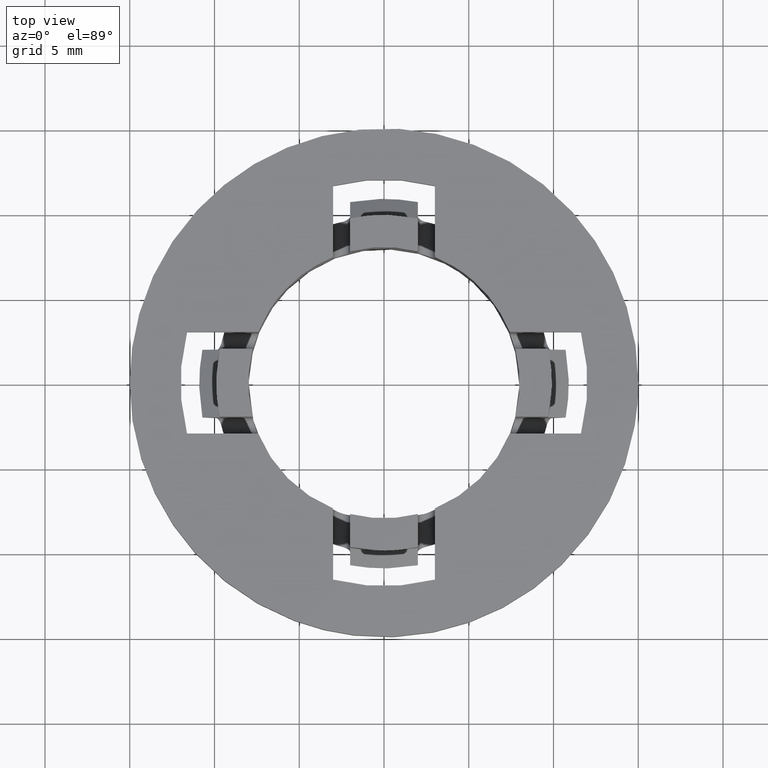
[diagram: clean part render]
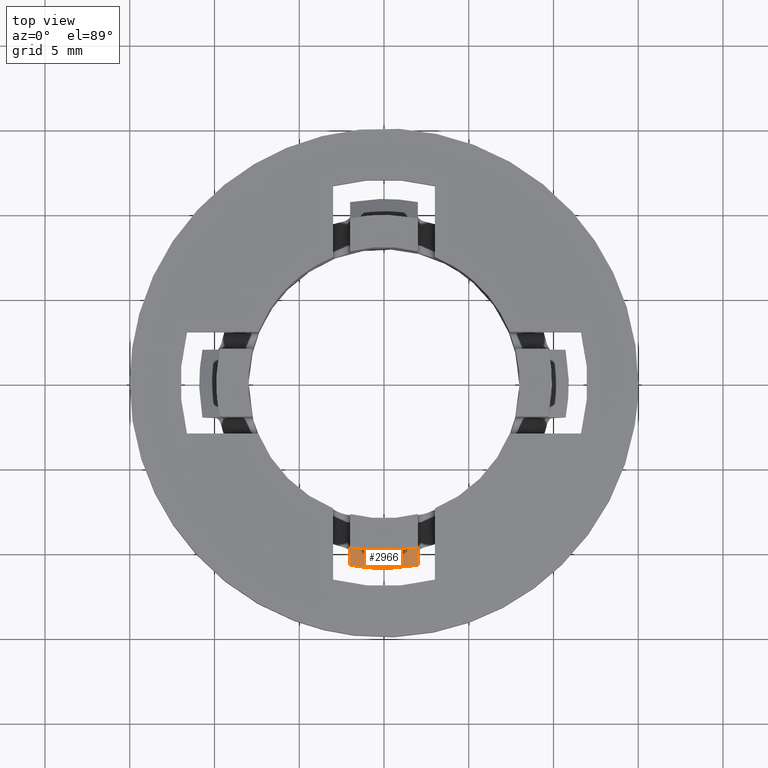
[diagram: same view with one face highlighted and labeled with its STEP entity id]
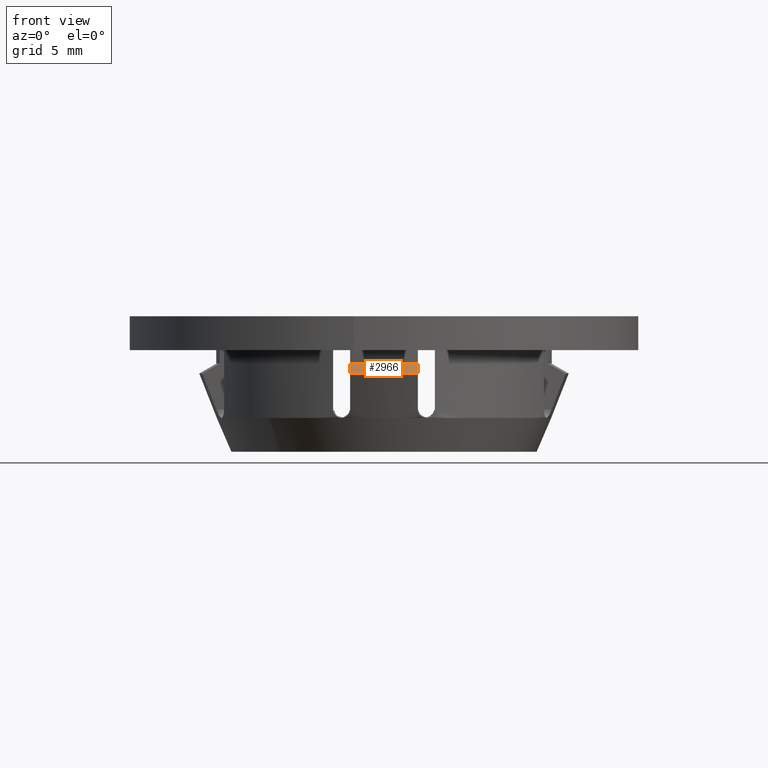
[diagram: same view with one face highlighted and labeled with its STEP entity id]
A machine part, top view. The second image highlights one B-rep face of the part: STEP entity #2966.
A second angle (front view) of the same face is appended — the face is thin or edge-on in the first view.
In plain terms, the highlighted face is a freeform B-spline surface patch.
Its self-contained STEP definition (entity closure, byte-faithful):
#2369=CARTESIAN_POINT('',(-2.0,-10.714942836991559,4.622649730810410));
#2370=VERTEX_POINT('',#2369);
#2378=CARTESIAN_POINT('',(-1.999999999999885,-9.695875411740841,5.199999999999870));
#2379=VERTEX_POINT('',#2378);
#2380=CARTESIAN_POINT('',(-1.999999999999885,-9.695875411740841,5.199999999999870));
#2381=CARTESIAN_POINT('',(-2.0,-10.035724751374170,5.007833520127124));
#2382=CARTESIAN_POINT('',(-2.0,-10.375399117788310,4.815357149717925));
#2383=CARTESIAN_POINT('',(-2.0,-10.714942836991559,4.622649730810412));
#2384=QUASI_UNIFORM_CURVE('',3,(#2380,#2381,#2382,#2383),.UNSPECIFIED.,.F.,.U.);
#2385=EDGE_CURVE('',#2379,#2370,#2384,.T.);
#2567=CARTESIAN_POINT('',(2.0,-10.714942836991559,4.622649730810410));
#2568=VERTEX_POINT('',#2567);
#2585=CARTESIAN_POINT('',(2.000000000000120,-9.695875411740790,5.199999999999870));
#2586=VERTEX_POINT('',#2585);
#2592=CARTESIAN_POINT('',(2.0,-10.714942836991559,4.622649730810412));
#2593=CARTESIAN_POINT('',(2.0,-10.375399117788289,4.815357149717933));
#2594=CARTESIAN_POINT('',(2.0,-10.035724751374151,5.007833520127139));
#2595=CARTESIAN_POINT('',(2.000000000000120,-9.695875411740790,5.199999999999870));
#2596=QUASI_UNIFORM_CURVE('',3,(#2592,#2593,#2594,#2595),.UNSPECIFIED.,.F.,.U.);
#2597=EDGE_CURVE('',#2568,#2586,#2596,.T.);
#2913=CARTESIAN_POINT('',(2.000000000000001,-10.714942836991570,4.622649730810410));
#2914=CARTESIAN_POINT('',(3.903128E-015,-11.088253274653512,4.622649730810410));
#2915=CARTESIAN_POINT('',(-1.999999999999997,-10.714942836991570,4.622649730810410));
#2923=(BOUNDED_CURVE()B_SPLINE_CURVE(2,(#2913,#2914,#2915),.UNSPECIFIED.,.F.,.U.)CURVE()GEOMETRIC_REPRESENTATION_ITEM()QUASI_UNIFORM_CURVE()RATIONAL_B_SPLINE_CURVE((1.0,0.983022278623092,1.0))REPRESENTATION_ITEM(''));
#2924=EDGE_CURVE('',#2568,#2370,#2923,.T.);
#2934=CARTESIAN_POINT('',(-2.189091279791165,-9.629304459240078,5.214433756729606));
#2935=CARTESIAN_POINT('',(-2.421993965951209,-10.653789319745238,4.607855130162431));
#2936=CARTESIAN_POINT('',(0.000440647384729,-10.127064735581298,5.214433756729605));
#2937=CARTESIAN_POINT('',(0.000487528919775,-11.204507509031361,4.607855130162429));
#2938=CARTESIAN_POINT('',(2.189929249322749,-9.629113919928424,5.214433756729606));
#2939=CARTESIAN_POINT('',(2.422921089076628,-10.653578508497949,4.607855130162430));
#2947=(BOUNDED_SURFACE()B_SPLINE_SURFACE(1,2,((#2934,#2936,#2938),(#2935,#2937,#2939)),.UNSPECIFIED.,.F.,.F.,.U.)B_SPLINE_SURFACE_WITH_KNOTS((2,2),(3,3),(0.0,1.0),(0.0,4.905964036069069),.UNSPECIFIED.)GEOMETRIC_REPRESENTATION_ITEM()RATIONAL_B_SPLINE_SURFACE(((0.997702792336946,0.970675119236128,0.993206543853067),(0.997702792336946,0.970675119236128,0.993206543853067)))REPRESENTATION_ITEM('')SURFACE());
#2948=CARTESIAN_POINT('',(2.000000000000120,-9.695875411740790,5.199999999999870));
#2949=CARTESIAN_POINT('',(1.275022E-013,-10.108421966862215,5.199999999999830));
#2950=CARTESIAN_POINT('',(-1.999999999999885,-9.695875411740841,5.199999999999870));
#2958=(BOUNDED_CURVE()B_SPLINE_CURVE(2,(#2948,#2949,#2950),.UNSPECIFIED.,.F.,.U.)CURVE()GEOMETRIC_REPRESENTATION_ITEM()QUASI_UNIFORM_CURVE()RATIONAL_B_SPLINE_CURVE((1.0,0.979381354721294,1.0))REPRESENTATION_ITEM(''));
#2959=EDGE_CURVE('',#2586,#2379,#2958,.T.);
#2960=ORIENTED_EDGE('',*,*,#2959,.T.);
#2961=ORIENTED_EDGE('',*,*,#2385,.T.);
#2962=ORIENTED_EDGE('',*,*,#2924,.F.);
#2963=ORIENTED_EDGE('',*,*,#2597,.T.);
#2964=EDGE_LOOP('',(#2960,#2961,#2962,#2963));
#2965=FACE_OUTER_BOUND('',#2964,.T.);
#2966=ADVANCED_FACE('',(#2965),#2947,.T.);